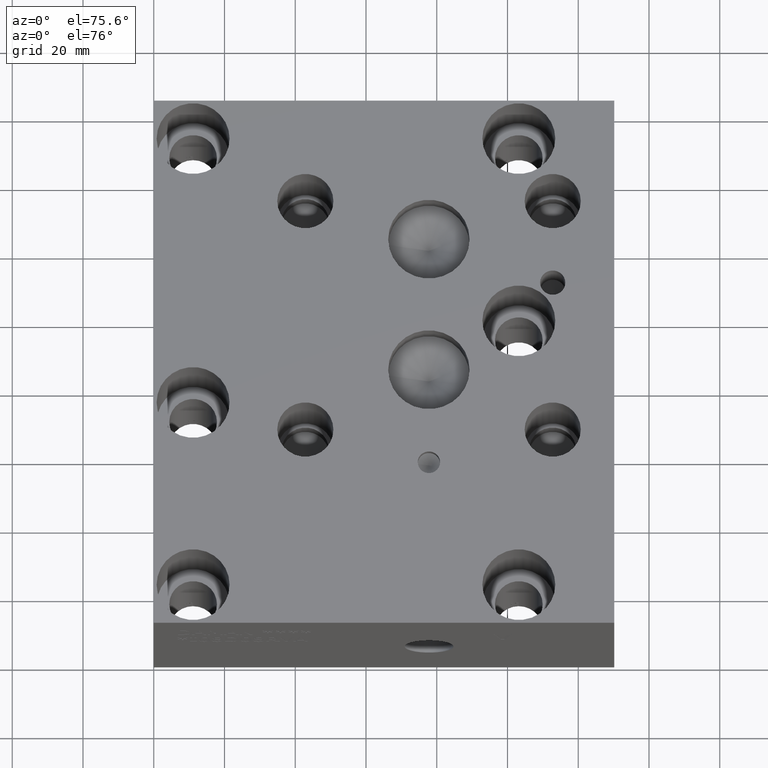
[diagram: clean part render]
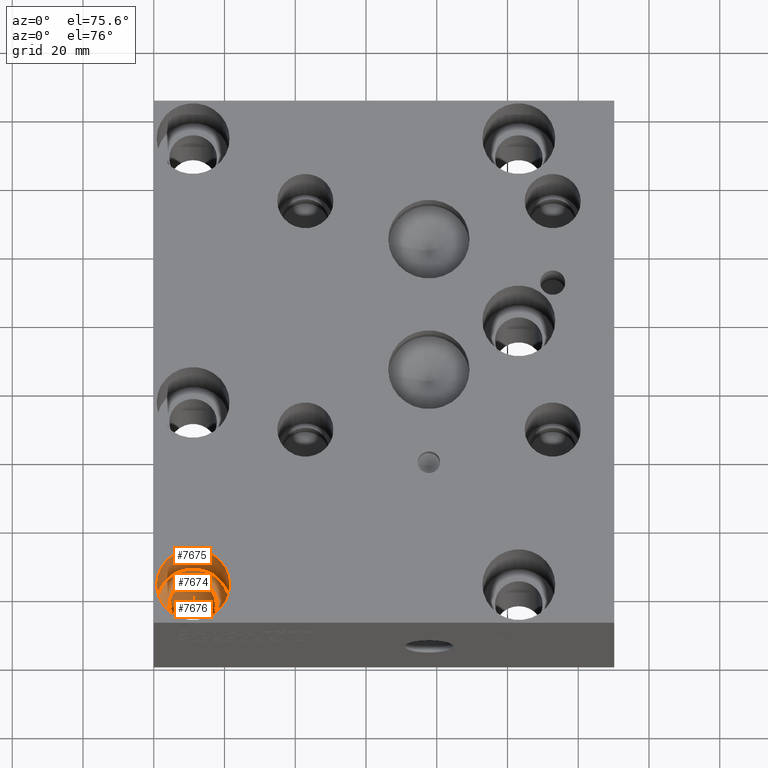
[diagram: same view with one multi-face feature highlighted, each face labeled with its STEP entity id]
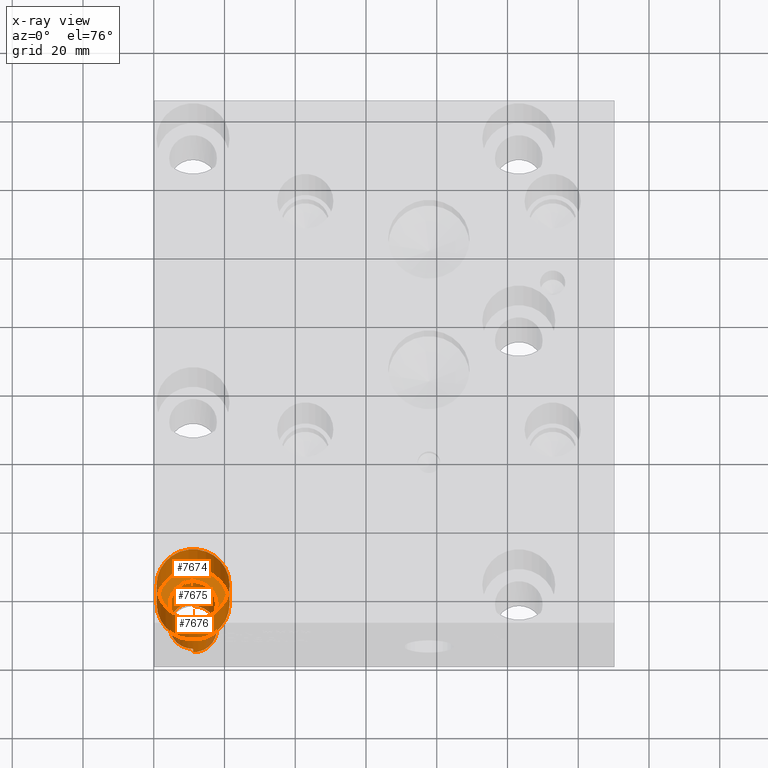
[diagram: x-ray of the same camera — body ghosted, the whole feature saturated]
A machine part, auxiliary view. The highlighted faces form ONE feature: a stepped (counterbored) hole: 2 coaxial cylindrical walls of radii 6.7437 -> 10.3124 mm joined by 1 annular planar shoulder face(s). The faces share edges in the B-rep.
The next image is the same camera in x-ray: the body ghosted and the whole hole feature saturated, so the bore chain is visible through the body.
Their STEP definitions:
[1] entity #7675 (Cylinder):
#40=CYLINDRICAL_SURFACE('',#8075,10.3124);
#141=CIRCLE('',#8073,10.3124);
#143=CIRCLE('',#8076,10.3124);
#888=FACE_OUTER_BOUND('',#1353,.T.);
#1353=EDGE_LOOP('',(#6581,#6582,#6583,#6584));
#2144=LINE('',#12974,#2907);
#2907=VECTOR('',#9571,10.3124);
#3591=VERTEX_POINT('',#12967);
#3593=VERTEX_POINT('',#12972);
#4605=EDGE_CURVE('',#3591,#3591,#141,.T.);
#4607=EDGE_CURVE('',#3593,#3593,#143,.T.);
#4608=EDGE_CURVE('',#3593,#3591,#2144,.T.);
#6581=ORIENTED_EDGE('',*,*,#4607,.F.);
#6582=ORIENTED_EDGE('',*,*,#4608,.T.);
#6583=ORIENTED_EDGE('',*,*,#4605,.F.);
#6584=ORIENTED_EDGE('',*,*,#4608,.F.);
#7675=ADVANCED_FACE('',(#888),#40,.F.);
#8073=AXIS2_PLACEMENT_3D('',#12968,#9563,#9564);
#8075=AXIS2_PLACEMENT_3D('',#12971,#9567,#9568);
#8076=AXIS2_PLACEMENT_3D('',#12973,#9569,#9570);
#9563=DIRECTION('center_axis',(0.,0.,1.));
#9564=DIRECTION('ref_axis',(1.,0.,0.));
#9567=DIRECTION('center_axis',(0.,0.,1.));
#9568=DIRECTION('ref_axis',(1.,0.,0.));
#9569=DIRECTION('center_axis',(0.,0.,-1.));
#9570=DIRECTION('ref_axis',(1.,0.,0.));
#9571=DIRECTION('',(0.,0.,-1.));
#12967=CARTESIAN_POINT('',(0.812799999999998,11.1252,28.448));
#12968=CARTESIAN_POINT('Origin',(11.1252,11.1252,28.448));
#12971=CARTESIAN_POINT('Origin',(11.1252,11.1252,39.624));
#12972=CARTESIAN_POINT('',(0.812799999999998,11.1252,50.8));
#12973=CARTESIAN_POINT('Origin',(11.1252,11.1252,50.8));
#12974=CARTESIAN_POINT('',(0.812799999999998,11.1252,39.624));
[2] entity #7676 (Cylinder):
#41=CYLINDRICAL_SURFACE('',#8077,6.7437);
#129=CIRCLE('',#8050,6.7437);
#142=CIRCLE('',#8074,6.7437);
#347=B_SPLINE_CURVE_WITH_KNOTS('',3,(#12717,#12718,#12719,#12720,#12721,
#12722,#12723,#12724,#12725,#12726,#12727,#12728),.UNSPECIFIED.,.F.,.F.,
(4,2,2,2,2,4),(1.01674544007374,1.01738033558291,1.27121998000574,1.52505962442857,
1.77863507007044,2.0322105157123),.UNSPECIFIED.);
#348=B_SPLINE_CURVE_WITH_KNOTS('',3,(#12731,#12732,#12733,#12734,#12735,
#12736,#12737,#12738,#12739,#12740,#12741,#12742),.UNSPECIFIED.,.F.,.F.,
(4,2,2,2,2,4),(2.0322105157123,2.28578596135417,2.53936140699603,2.79320105141886,
3.04704069584169,3.04767559135274),.UNSPECIFIED.);
#889=FACE_OUTER_BOUND('',#1354,.T.);
#1354=EDGE_LOOP('',(#6585,#6586,#6587,#6588,#6589,#6590,#6591,#6592));
#2122=LINE('',#12745,#2885);
#2123=LINE('',#12747,#2886);
#2145=LINE('',#12976,#2908);
#2885=VECTOR('',#9441,10.);
#2886=VECTOR('',#9442,10.);
#2908=VECTOR('',#9574,6.7437);
#3549=VERTEX_POINT('',#12715);
#3550=VERTEX_POINT('',#12716);
#3551=VERTEX_POINT('',#12729);
#3552=VERTEX_POINT('',#12744);
#3553=VERTEX_POINT('',#12746);
#3592=VERTEX_POINT('',#12969);
#4544=EDGE_CURVE('',#3549,#3550,#347,.T.);
#4546=EDGE_CURVE('',#3550,#3551,#348,.T.);
#4547=EDGE_CURVE('',#3551,#3552,#2122,.T.);
#4548=EDGE_CURVE('',#3553,#3549,#2123,.T.);
#4586=EDGE_CURVE('',#3553,#3552,#129,.T.);
#4606=EDGE_CURVE('',#3592,#3592,#142,.T.);
#4609=EDGE_CURVE('',#3592,#3550,#2145,.T.);
#6585=ORIENTED_EDGE('',*,*,#4606,.T.);
#6586=ORIENTED_EDGE('',*,*,#4609,.T.);
#6587=ORIENTED_EDGE('',*,*,#4546,.T.);
#6588=ORIENTED_EDGE('',*,*,#4547,.T.);
#6589=ORIENTED_EDGE('',*,*,#4586,.F.);
#6590=ORIENTED_EDGE('',*,*,#4548,.T.);
#6591=ORIENTED_EDGE('',*,*,#4544,.T.);
#6592=ORIENTED_EDGE('',*,*,#4609,.F.);
#7676=ADVANCED_FACE('',(#889),#41,.F.);
#8050=AXIS2_PLACEMENT_3D('',#12927,#9510,#9511);
#8074=AXIS2_PLACEMENT_3D('',#12970,#9565,#9566);
#8077=AXIS2_PLACEMENT_3D('',#12975,#9572,#9573);
#9441=DIRECTION('',(0.,0.,-1.));
#9442=DIRECTION('',(0.,0.,1.));
#9510=DIRECTION('center_axis',(0.,0.,1.));
#9511=DIRECTION('ref_axis',(1.,0.,0.));
#9565=DIRECTION('center_axis',(0.,0.,1.));
#9566=DIRECTION('ref_axis',(1.,0.,0.));
#9572=DIRECTION('center_axis',(0.,0.,1.));
#9573=DIRECTION('ref_axis',(1.,0.,0.));
#9574=DIRECTION('',(0.,0.,-1.));
#12715=CARTESIAN_POINT('',(11.1188499999906,4.38150298964286,3.89348));
#12716=CARTESIAN_POINT('',(4.3815,11.1252,3.90081234841871));
#12717=CARTESIAN_POINT('Ctrl Pts',(11.1188499999906,4.38150298964286,3.89348));
#12718=CARTESIAN_POINT('Ctrl Pts',(11.1167329806967,4.38150498307057,3.89348230181103));
#12719=CARTESIAN_POINT('Ctrl Pts',(11.1146163133601,4.38150797304805,3.89348460324144));
#12720=CARTESIAN_POINT('Ctrl Pts',(10.266369852513,4.38310542684286,3.89440689361989));
#12721=CARTESIAN_POINT('Ctrl Pts',(9.36411688577102,4.55378219356597,3.89538826437824));
#12722=CARTESIAN_POINT('Ctrl Pts',(7.70485493047415,5.24419793170321,3.89719366449771));
#12723=CARTESIAN_POINT('Ctrl Pts',(6.94784594312718,5.76393690606908,3.89801767522282));
#12724=CARTESIAN_POINT('Ctrl Pts',(5.75345129870628,6.96151710723144,3.89931805976622));
#12725=CARTESIAN_POINT('Ctrl Pts',(5.23610442625222,7.71903898663832,3.89988148705157));
#12726=CARTESIAN_POINT('Ctrl Pts',(4.55012877541325,9.37825468966767,3.90062864071259));
#12727=CARTESIAN_POINT('Ctrl Pts',(4.3815,10.2799485145271,3.90081234841871));
#12728=CARTESIAN_POINT('Ctrl Pts',(4.3815,11.1252,3.90081234841871));
#12729=CARTESIAN_POINT('',(11.1188500000094,17.8688970103572,3.89348));
#12731=CARTESIAN_POINT('Ctrl Pts',(4.3815,11.1252,3.90081234841871));
#12732=CARTESIAN_POINT('Ctrl Pts',(4.3815,11.9704514854729,3.90081234841871));
#12733=CARTESIAN_POINT('Ctrl Pts',(4.55012877541326,12.8721453103323,3.90062864071259));
#12734=CARTESIAN_POINT('Ctrl Pts',(5.23610442625223,14.5313610133617,3.89988148705158));
#12735=CARTESIAN_POINT('Ctrl Pts',(5.7534512987063,15.2888828927686,3.89931805976623));
#12736=CARTESIAN_POINT('Ctrl Pts',(6.94784594312719,16.4864630939309,3.89801767522284));
#12737=CARTESIAN_POINT('Ctrl Pts',(7.70485493047416,17.0062020682968,3.89719366449773));
#12738=CARTESIAN_POINT('Ctrl Pts',(9.36411688577103,17.696617806434,3.89538826437826));
#12739=CARTESIAN_POINT('Ctrl Pts',(10.266369852513,17.8672945731571,3.89440689361991));
#12740=CARTESIAN_POINT('Ctrl Pts',(11.1146163133664,17.868892026952,3.89348460324145));
#12741=CARTESIAN_POINT('Ctrl Pts',(11.1167329807093,17.8688950169294,3.89348230181104));
#12742=CARTESIAN_POINT('Ctrl Pts',(11.1188500000094,17.8688970103572,3.89348));
#12744=CARTESIAN_POINT('',(11.1188500000094,17.8688970103572,0.));
#12745=CARTESIAN_POINT('',(11.1188500000094,17.8688970103572,1.94674));
#12746=CARTESIAN_POINT('',(11.1188499999906,4.38150298964286,0.));
#12747=CARTESIAN_POINT('',(11.1188499999906,4.38150298964286,1.94674));
#12927=CARTESIAN_POINT('Origin',(11.1252,11.1252,0.));
#12969=CARTESIAN_POINT('',(4.3815,11.1252,28.448));
#12970=CARTESIAN_POINT('Origin',(11.1252,11.1252,28.448));
#12975=CARTESIAN_POINT('Origin',(11.1252,11.1252,-155.965399970595));
#12976=CARTESIAN_POINT('',(4.3815,11.1252,-155.965399970595));
[3] entity #7674 (Plane):
#141=CIRCLE('',#8073,10.3124);
#142=CIRCLE('',#8074,6.7437);
#498=FACE_BOUND('',#1352,.T.);
#887=FACE_OUTER_BOUND('',#1351,.T.);
#1351=EDGE_LOOP('',(#6579));
#1352=EDGE_LOOP('',(#6580));
#3591=VERTEX_POINT('',#12967);
#3592=VERTEX_POINT('',#12969);
#4605=EDGE_CURVE('',#3591,#3591,#141,.T.);
#4606=EDGE_CURVE('',#3592,#3592,#142,.T.);
#6579=ORIENTED_EDGE('',*,*,#4605,.T.);
#6580=ORIENTED_EDGE('',*,*,#4606,.F.);
#6989=PLANE('',#8072);
#7674=ADVANCED_FACE('',(#887,#498),#6989,.T.);
#8072=AXIS2_PLACEMENT_3D('',#12966,#9561,#9562);
#8073=AXIS2_PLACEMENT_3D('',#12968,#9563,#9564);
#8074=AXIS2_PLACEMENT_3D('',#12970,#9565,#9566);
#9561=DIRECTION('center_axis',(0.,0.,1.));
#9562=DIRECTION('ref_axis',(1.,0.,0.));
#9563=DIRECTION('center_axis',(0.,0.,1.));
#9564=DIRECTION('ref_axis',(1.,0.,0.));
#9565=DIRECTION('center_axis',(0.,0.,1.));
#9566=DIRECTION('ref_axis',(1.,0.,0.));
#12966=CARTESIAN_POINT('Origin',(11.1252,11.1252,28.448));
#12967=CARTESIAN_POINT('',(0.812799999999998,11.1252,28.448));
#12968=CARTESIAN_POINT('Origin',(11.1252,11.1252,28.448));
#12969=CARTESIAN_POINT('',(4.3815,11.1252,28.448));
#12970=CARTESIAN_POINT('Origin',(11.1252,11.1252,28.448));